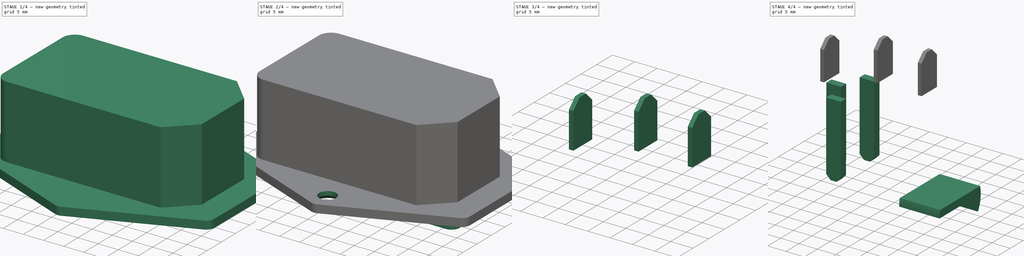
[diagram: build sequence overview — one tinted view per stage of 4, left to right]
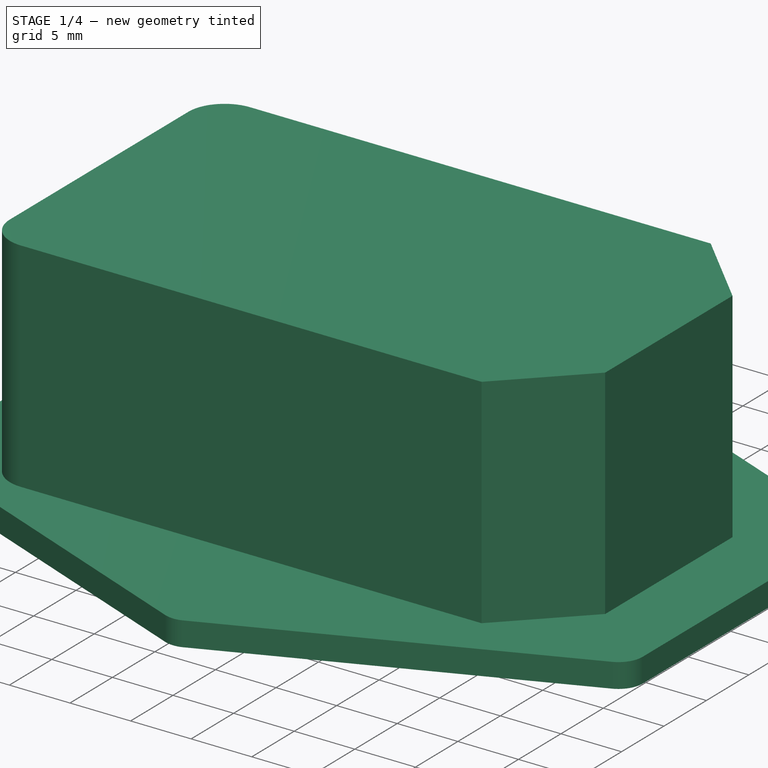
[diagram: stage 1 of 4 — iso view after this stage's code; geometry added in this stage tinted green]
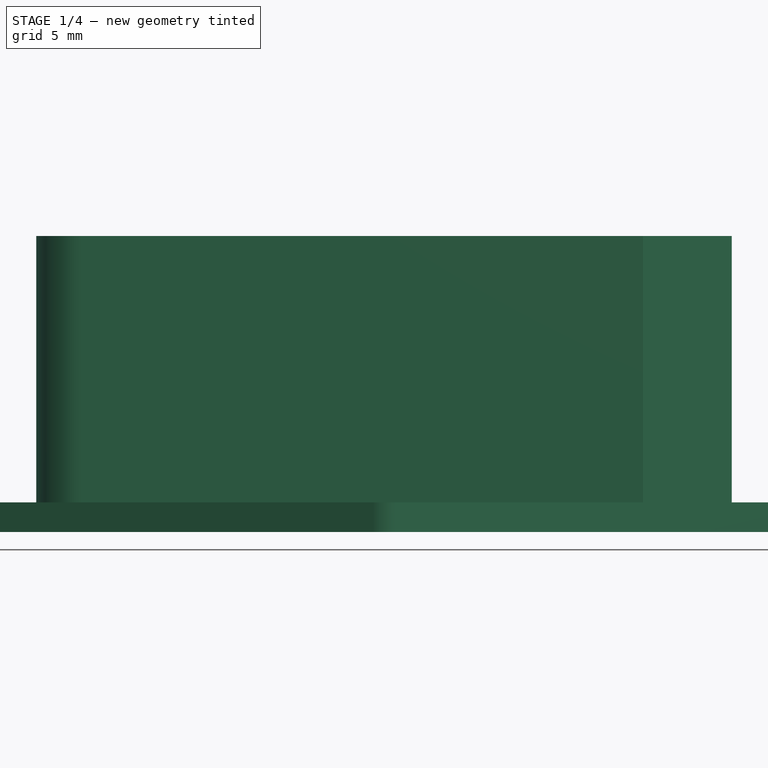
[diagram: stage 1 of 4 — front view after this stage's code; geometry added in this stage tinted green]
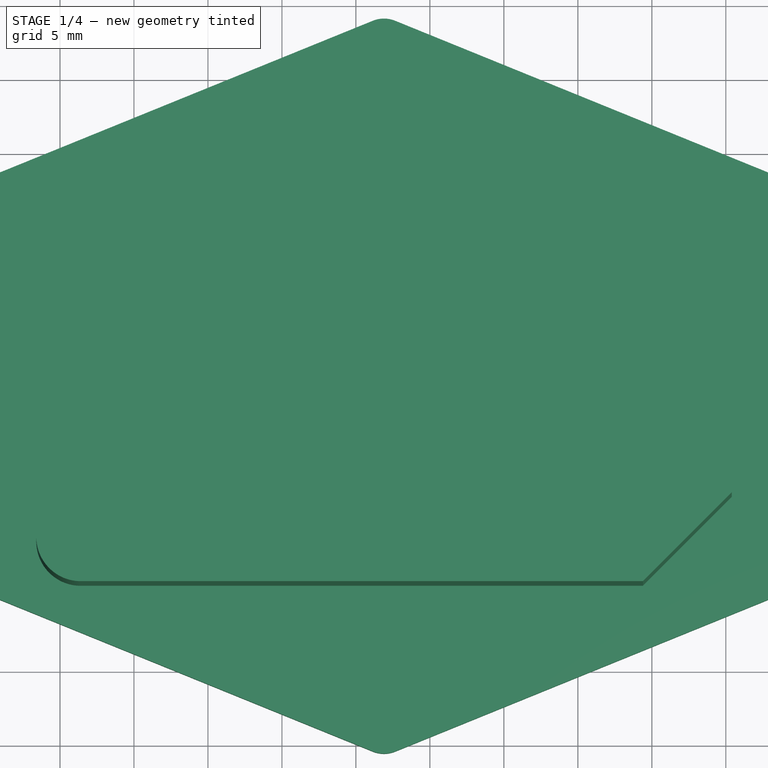
[diagram: stage 1 of 4 — top view after this stage's code; geometry added in this stage tinted green]
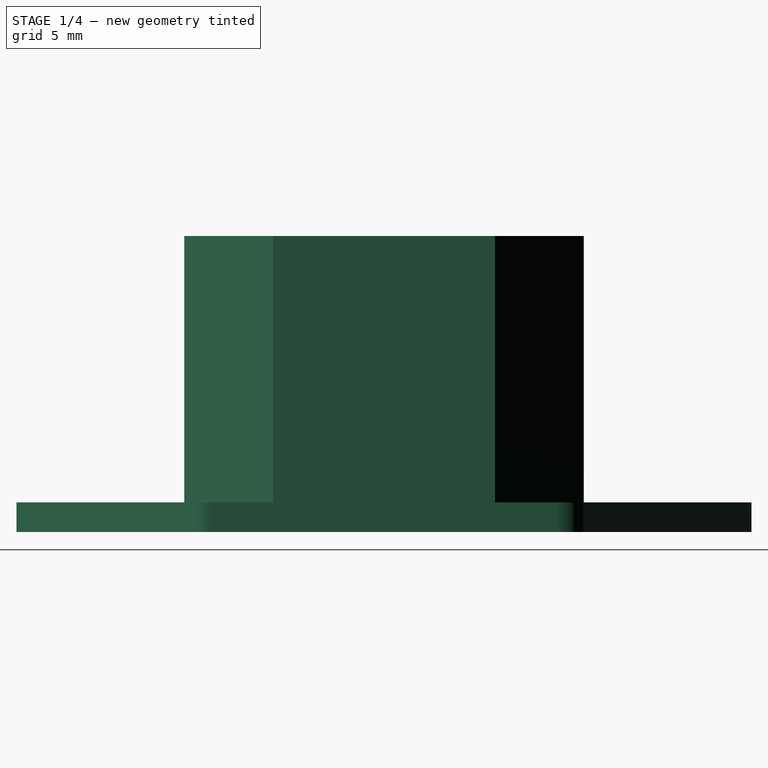
[diagram: stage 1 of 4 — right view after this stage's code; geometry added in this stage tinted green]
FCSTD DOCUMENT  (FreeCAD 0.16R5667 (Git))
Label: InterruptorConFusible
License: All rights reserved
LicenseURL: http://es.wikipedia.org/wiki/Todos_los_derechos_reservados
objects: Sketcher::SketchObject×8, PartDesign::Pad×4, PartDesign::Chamfer×3, PartDesign::Fillet×2, PartDesign::Pocket×2, Part::Extrusion×2, Part::FeaturePython×1
note: 28 computed .brp shape members not serialized (recipe doc carries the construction recipe); baked Part::Feature solids carry a one-line shape summary decoded from their .brp

FEATURE [Sketcher::SketchObject] Sketch
  sketch-geometry (7):
    g0: LineSegment StartX=-21.6015 StartY=12.7915 StartZ=0 EndX=19.3985 EndY=12.7915 EndZ=0
    g1: LineSegment StartX=19.3985 StartY=12.7915 StartZ=0 EndX=25.3985 EndY=6.79146 EndZ=0
    g2: LineSegment StartX=25.3985 StartY=6.79146 StartZ=0 EndX=25.3985 EndY=-8.20854 EndZ=0
    g3: LineSegment StartX=25.3985 StartY=-8.20854 StartZ=0 EndX=19.3985 EndY=-14.2085 EndZ=0
    g4: LineSegment StartX=19.3985 StartY=-14.2085 StartZ=0 EndX=-21.6015 EndY=-14.2085 EndZ=0
    g5: LineSegment StartX=-21.6015 StartY=-14.2085 StartZ=0 EndX=-21.6015 EndY=12.7915 EndZ=0
    g6: LineSegment [constr] StartX=19.3985 StartY=12.7915 StartZ=0 EndX=19.3985 EndY=-14.2085 EndZ=0
  constraints (19):
    c: Horizontal(g0)
    c: Coincident(g0,g1)
    c: Coincident(g1,g2)
    c: Vertical(g2)
    c: Coincident(g2,g3)
    c: Coincident(g3,g4)
    c: Horizontal(g4)
    c: Coincident(g4,g5)
    c: Coincident(g5,g0)
    c: Vertical(g5)
    c: Equal(g1,g3)
    c: Equal(g0,g4)
    c: Coincident(g6,g0)
    c: Coincident(g6,g3)
    c: Distance(g1,g5) = 47
    c: Perpendicular(g3,g1)
    c: Distance(g1,g6) = 6
    c: Distance(g5) = 27
    c: Distance(g2) = 15
FEATURE [PartDesign::Pad] Pad
  Length = 18
  Length2 = 100
  Sketch = -> Sketch
  Type = 0
FEATURE [Sketcher::SketchObject] Sketch001
  ExternalGeometry = -> [Pad]
  Placement = pos=(0,0,0) rot=(1,0,0;3.14159rad)
  Support = -> Pad [Face7]
  sketch-geometry (14):
    g0: LineSegment StartX=1.89849 StartY=25.7085 StartZ=0 EndX=-27.6015 EndY=13.7085 EndZ=0
    g1: LineSegment StartX=-27.6015 StartY=13.7085 StartZ=0 EndX=-27.6015 EndY=-12.2915 EndZ=0
    g2: LineSegment StartX=-27.6015 StartY=-12.2915 StartZ=0 EndX=1.89849 EndY=-24.2915 EndZ=0
    g3: LineSegment StartX=1.89849 StartY=-24.2915 StartZ=0 EndX=31.3985 EndY=-12.2915 EndZ=0
    g4: LineSegment StartX=31.3985 StartY=-12.2915 StartZ=0 EndX=31.3985 EndY=13.7085 EndZ=0
    g5: LineSegment StartX=31.3985 StartY=13.7085 StartZ=0 EndX=1.89849 EndY=25.7085 EndZ=0
    g6: LineSegment [constr] StartX=-21.6015 StartY=14.2085 StartZ=0 EndX=25.3985 EndY=14.2085 EndZ=0
    g7: LineSegment [constr] StartX=25.3985 StartY=14.2085 StartZ=0 EndX=25.3985 EndY=-12.7915 EndZ=0
    g8: LineSegment [constr] StartX=25.3985 StartY=-12.7915 StartZ=0 EndX=-21.6015 EndY=-12.7915 EndZ=0
    g9: LineSegment [constr] StartX=-21.6015 StartY=-12.7915 StartZ=0 EndX=-21.6015 EndY=14.2085 EndZ=0
    g10: LineSegment [constr] StartX=1.89849 StartY=25.7085 StartZ=0 EndX=-21.6015 EndY=14.2085 EndZ=0
    g11: LineSegment [constr] StartX=1.89849 StartY=25.7085 StartZ=0 EndX=25.3985 EndY=14.2085 EndZ=0
    g12: LineSegment [constr] StartX=25.3985 StartY=-12.7915 StartZ=0 EndX=1.89849 EndY=-24.2915 EndZ=0
    g13: LineSegment [constr] StartX=-21.6015 StartY=-12.7915 StartZ=0 EndX=1.89849 EndY=-24.2915 EndZ=0
  constraints (37):
    c: Coincident(g0,g1)
    c: Vertical(g1)
    c: Coincident(g1,g2)
    c: Coincident(g2,g3)
    c: Coincident(g3,g4)
    c: Vertical(g4)
    c: Coincident(g4,g5)
    c: Coincident(g5,g0)
    c: Coincident(g6,g7)
    c: Coincident(g7,g8)
    c: Coincident(g8,g9)
    c: Coincident(g9,g6)
    c: Horizontal(g6)
    c: Horizontal(g8)
    c: Vertical(g7)
    c: Vertical(g9)
    c: Coincident(g6,g-4)
    c: PointOnObject(g-3,g7)
    c: Coincident(g8,g-4)
    c: Coincident(g10,g0)
    c: Coincident(g10,g6)
    c: Coincident(g11,g0)
    c: Coincident(g11,g6)
    c: Coincident(g12,g7)
    c: Coincident(g12,g2)
    c: Coincident(g13,g8)
    c: Coincident(g13,g2)
    c: Equal(g12,g13)
    c: Equal(g13,g10)
    c: Equal(g10,g11)
    c: Equal(g2,g3)
    c: Equal(g3,g5)
    c: Equal(g5,g0)
    c: Equal(g1,g4)
    c: Distance(g0,g4) = 59
    c: Distance(g0,g2) = 50
    c: Distance(g4) = 26
FEATURE [PartDesign::Pad] Pad001
  Length = 2
  Length2 = 100
  Sketch = -> Sketch001
  Type = 0
FEATURE [PartDesign::Fillet] Fillet
  Base = -> Pad001 [Edge25,Edge28,Edge26,Edge30,Edge34,Edge32]
  Radius = 2
FEATURE [PartDesign::Fillet] Fillet001
  Base = -> Fillet [Edge45,Edge43]
  Radius = 3
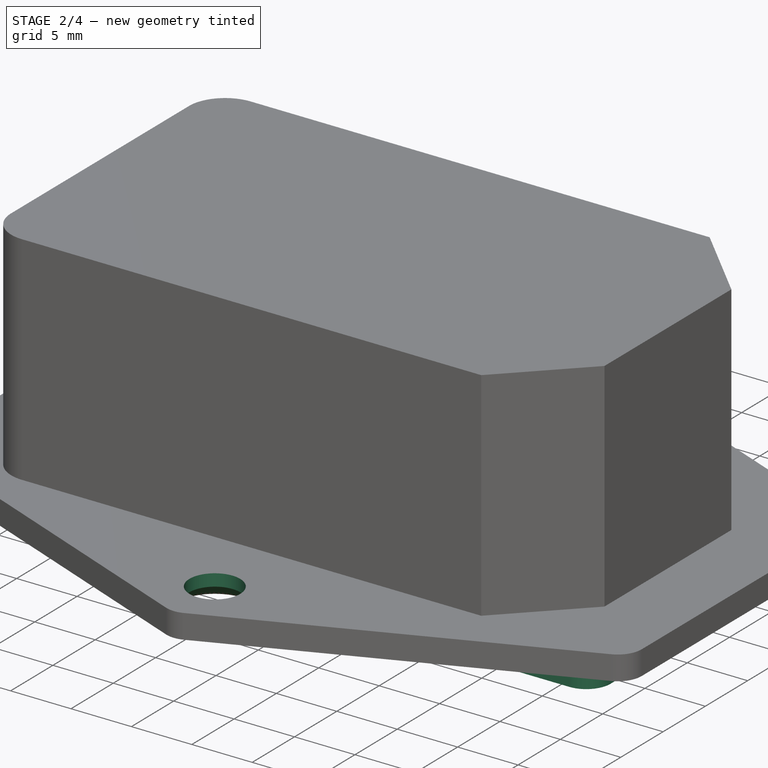
[diagram: stage 2 of 4 — iso view after this stage's code; geometry added in this stage tinted green]
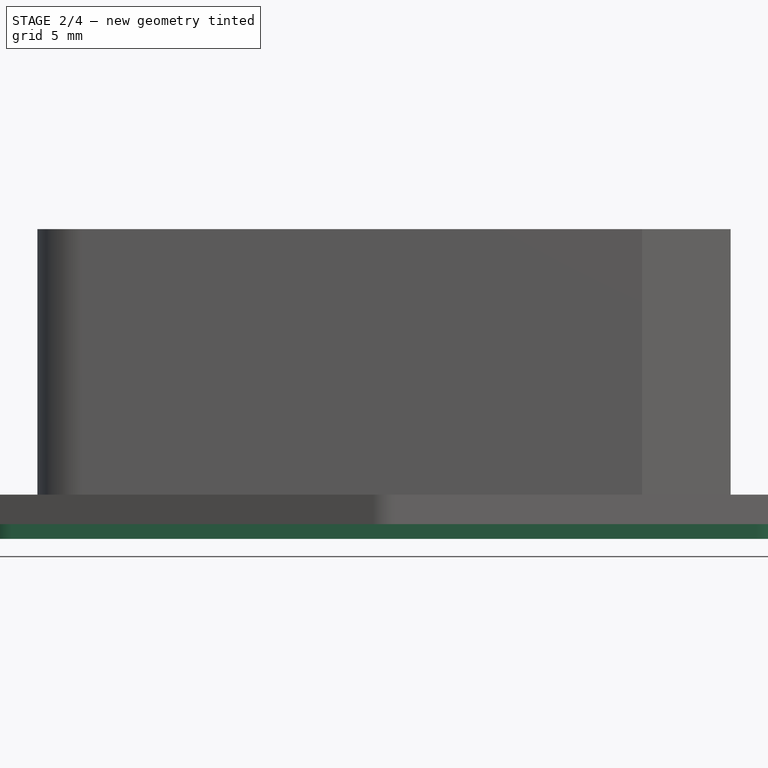
[diagram: stage 2 of 4 — front view after this stage's code; geometry added in this stage tinted green]
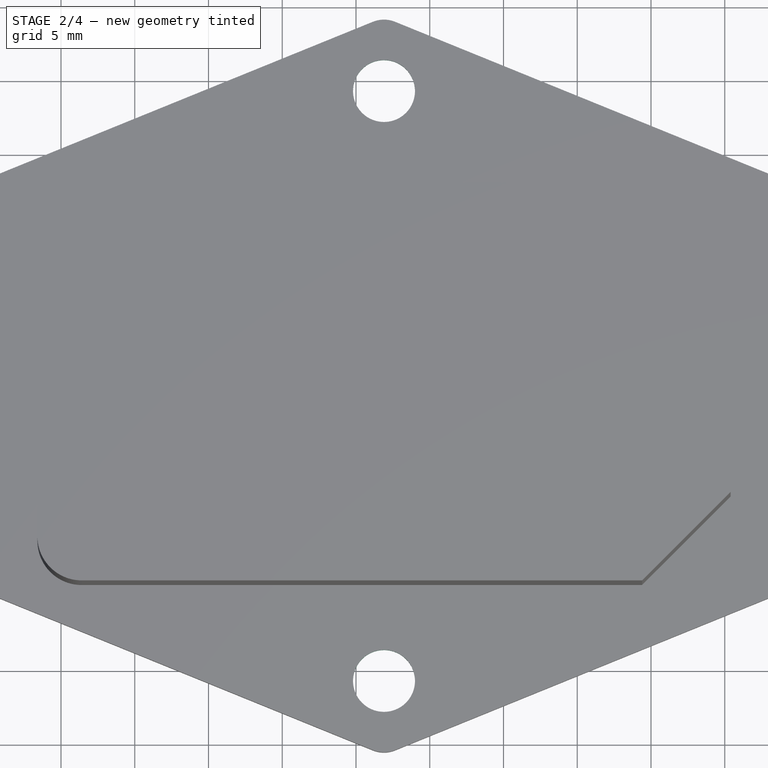
[diagram: stage 2 of 4 — top view after this stage's code; geometry added in this stage tinted green]
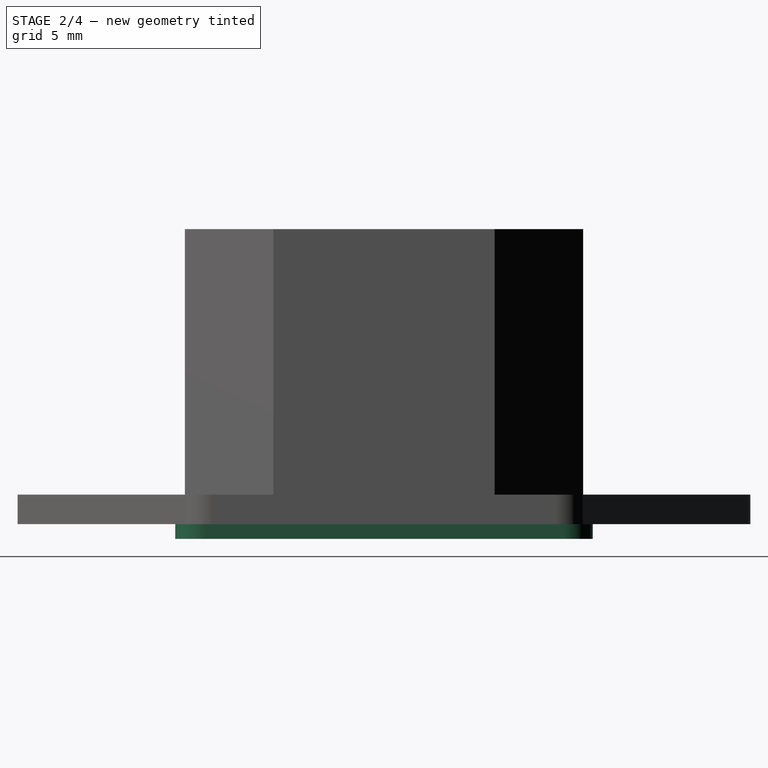
[diagram: stage 2 of 4 — right view after this stage's code; geometry added in this stage tinted green]
FEATURE [Sketcher::SketchObject] Sketch002
  ExternalGeometry = -> [Fillet001]
  Placement = pos=(0,0,-2) rot=(1,0,0;3.14159rad)
  Support = -> Fillet001 [Face23]
  sketch-geometry (5):
    g0: LineSegment [constr] StartX=1.89849 StartY=23.5494 StartZ=0 EndX=1.89849 EndY=20.7085 EndZ=0
    g1: LineSegment [constr] StartX=1.89849 StartY=20.7085 StartZ=0 EndX=1.89849 EndY=-19.2915 EndZ=0
    g2: LineSegment [constr] StartX=1.89849 StartY=-19.2915 StartZ=0 EndX=1.89849 EndY=-22.1323 EndZ=0
    g3: Circle CenterX=1.89849 CenterY=20.7085 CenterZ=0 NormalX=0 NormalY=0 NormalZ=1 Radius=2.1
    g4: Circle CenterX=1.89849 CenterY=-19.2915 CenterZ=0 NormalX=0 NormalY=0 NormalZ=1 Radius=2.1
  constraints (12):
    c: Coincident(g0,g-3)
    c: Vertical(g0)
    c: Coincident(g0,g1)
    c: Vertical(g1)
    c: Coincident(g1,g2)
    c: Coincident(g2,g-4)
    c: Equal(g0,g2)
    c: Coincident(g3,g0)
    c: Coincident(g4,g1)
    c: Radius(g3) = 2.1
    c: Equal(g3,g4)
    c: Distance(g1) = 40
FEATURE [PartDesign::Pocket] Pocket
  Length = 5
  Sketch = -> Sketch002
  Type = 0
FEATURE [PartDesign::Chamfer] Chamfer
  Base = -> Pocket [Edge47,Edge65]
  Size = 1
FEATURE [Sketcher::SketchObject] Sketch003
  ExternalGeometry = -> [Chamfer]
  Placement = pos=(0,0,-2) rot=(1,0,0;3.14159rad)
  Support = -> Chamfer [Face4]
  sketch-geometry (11):
    g0: LineSegment StartX=-23.3515 StartY=14.8585 StartZ=0 EndX=27.1485 EndY=14.8585 EndZ=0
    g1: LineSegment StartX=29.1485 StartY=12.8585 StartZ=0 EndX=29.1485 EndY=-11.4415 EndZ=0
    g2: LineSegment StartX=27.1485 StartY=-13.4415 StartZ=0 EndX=-23.3515 EndY=-13.4415 EndZ=0
    g3: LineSegment StartX=-25.3515 StartY=-11.4415 StartZ=0 EndX=-25.3515 EndY=12.8585 EndZ=0
    g4: LineSegment [constr] StartX=29.1485 StartY=12.8585 StartZ=0 EndX=31.3985 EndY=12.363 EndZ=0
    g5: LineSegment [constr] StartX=29.1485 StartY=-11.4415 StartZ=0 EndX=31.3985 EndY=-10.9459 EndZ=0
    g6: LineSegment [constr] StartX=-25.3515 StartY=12.8585 StartZ=0 EndX=-27.6015 EndY=12.363 EndZ=0
    g7: ArcOfCircle CenterX=27.1485 CenterY=12.8585 CenterZ=0 NormalX=0 NormalY=0 NormalZ=1 Radius=2 StartAngle=0 EndAngle=1.5708
    g8: ArcOfCircle CenterX=27.1485 CenterY=-11.4415 CenterZ=0 NormalX=0 NormalY=0 NormalZ=1 Radius=2 StartAngle=4.71239 EndAngle=6.28319
    g9: ArcOfCircle CenterX=-23.3515 CenterY=-11.4415 CenterZ=0 NormalX=0 NormalY=0 NormalZ=1 Radius=2 StartAngle=3.14159 EndAngle=4.71239
    g10: ArcOfCircle CenterX=-23.3515 CenterY=12.8585 CenterZ=0 NormalX=0 NormalY=0 NormalZ=1 Radius=2 StartAngle=1.5708 EndAngle=3.14159
  constraints (27):
    c: Horizontal(g0)
    c: Horizontal(g2)
    c: Vertical(g1)
    c: Vertical(g3)
    c: Coincident(g4,g-4)
    c: Coincident(g5,g-4)
    c: Coincident(g6,g-3)
    c: Equal(g5,g4)
    c: Tangent(g0,g7) = 1.5708
    c: Tangent(g1,g7) = 1.5708
    c: Tangent(g1,g8) = 1.5708
    c: Tangent(g2,g8) = 1.5708
    c: Tangent(g3,g9) = 1.5708
    c: Tangent(g2,g9) = 1.5708
    c: Tangent(g3,g10) = 1.5708
    c: Tangent(g0,g10) = 1.5708
    c: Radius(g10) = 2
    c: Equal(g10,g7)
    c: Equal(g10,g8)
    c: Equal(g10,g9)
    c: Distance(g0,g2) = 28.3
    c: Distance(g1,g3) = 54.5
    c: Coincident(g4,g1)
    c: Coincident(g1,g5)
    c: Coincident(g6,g3)
    c: Equal(g5,g4)
    c: Equal(g4,g6)
FEATURE [PartDesign::Pad] Pad002
  Length = 1
  Length2 = 100
  Sketch = -> Sketch003
  Type = 0
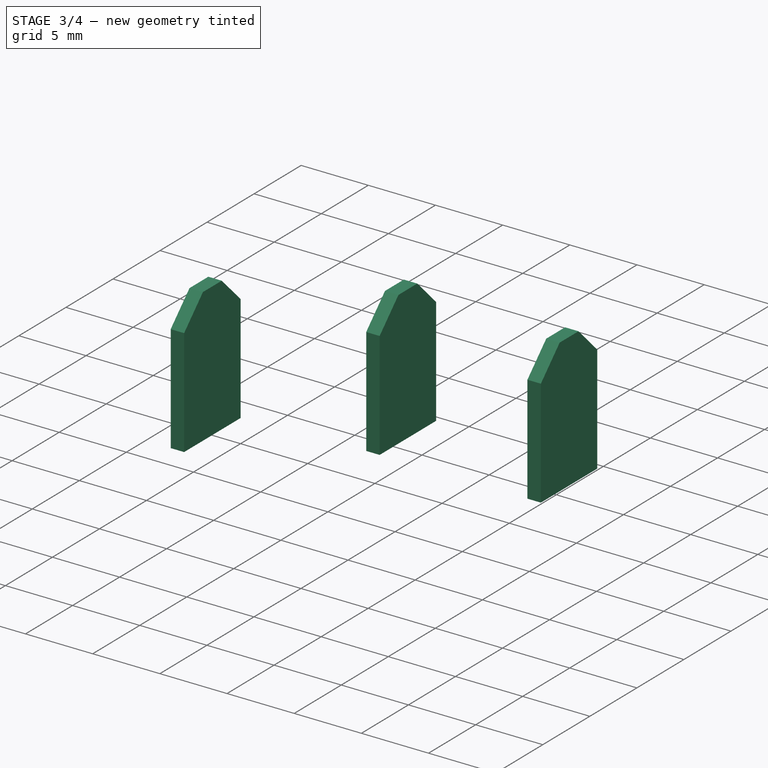
[diagram: stage 3 of 4 — iso view after this stage's code; geometry added in this stage tinted green]
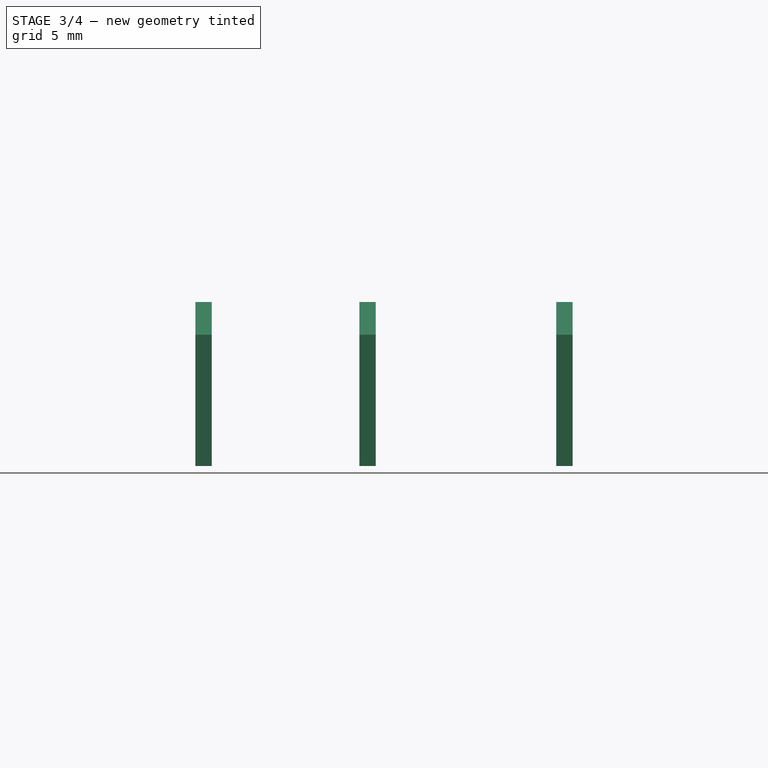
[diagram: stage 3 of 4 — front view after this stage's code; geometry added in this stage tinted green]
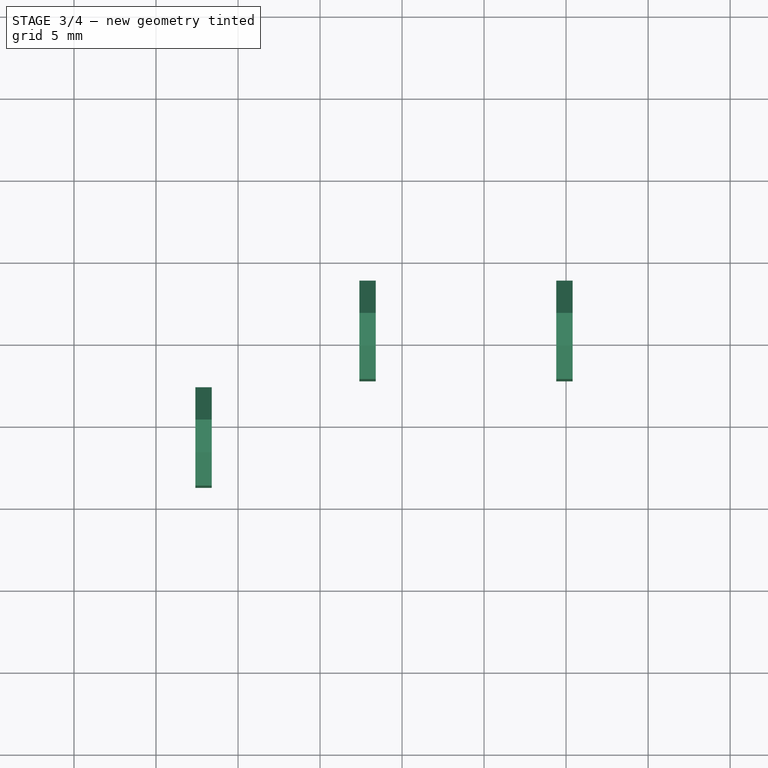
[diagram: stage 3 of 4 — top view after this stage's code; geometry added in this stage tinted green]
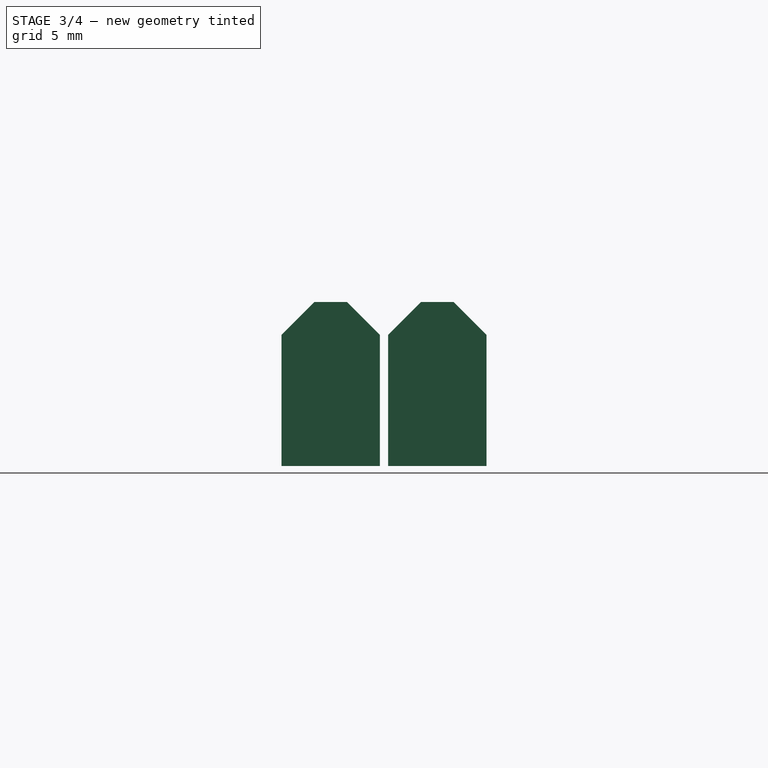
[diagram: stage 3 of 4 — right view after this stage's code; geometry added in this stage tinted green]
FEATURE [Sketcher::SketchObject] Sketch004
  ExternalGeometry = -> [Pad002]
  Placement = pos=(0,0,-3) rot=(1,0,0;3.14159rad)
  Support = -> Pad002 [Face1]
  sketch-geometry (8):
    g0: LineSegment StartX=-16.3515 StartY=12.7085 StartZ=0 EndX=-4.35151 EndY=12.7085 EndZ=0
    g1: LineSegment StartX=-4.35151 StartY=12.7085 StartZ=0 EndX=-4.35151 EndY=-11.2915 EndZ=0
    g2: LineSegment StartX=-4.35151 StartY=-11.2915 StartZ=0 EndX=-16.3515 EndY=-11.2915 EndZ=0
    g3: LineSegment StartX=-16.3515 StartY=-11.2915 StartZ=0 EndX=-21.3515 EndY=-7.29146 EndZ=0
    g4: LineSegment StartX=-21.3515 StartY=-7.29146 StartZ=0 EndX=-21.3515 EndY=8.70854 EndZ=0
    g5: LineSegment StartX=-21.3515 StartY=8.70854 StartZ=0 EndX=-16.3515 EndY=12.7085 EndZ=0
    g6: LineSegment [constr] StartX=-4.35151 StartY=12.7085 StartZ=0 EndX=-4.35151 EndY=14.8585 EndZ=0
    g7: LineSegment [constr] StartX=-4.35151 StartY=-11.2915 StartZ=0 EndX=-4.35151 EndY=-13.4415 EndZ=0
  constraints (24):
    c: Horizontal(g0)
    c: Coincident(g0,g1)
    c: Vertical(g1)
    c: Coincident(g1,g2)
    c: Horizontal(g2)
    c: Coincident(g2,g3)
    c: Coincident(g3,g4)
    c: Vertical(g4)
    c: Coincident(g4,g5)
    c: Coincident(g5,g0)
    c: Equal(g0,g2)
    c: Equal(g3,g5)
    c: Distance(g1) = 24
    c: Distance(g4,g1) = 17
    c: Distance(g4) = 16
    c: Distance(g4,g-3) = 4
    c: Coincident(g6,g0)
    c: PointOnObject(g6,g-5)
    c: Vertical(g6)
    c: Coincident(g7,g1)
    c: PointOnObject(g7,g-4)
    c: Vertical(g7)
    c: Equal(g7,g6)
    c: Distance(g0) = 12
FEATURE [PartDesign::Pocket] Pocket001
  Length = 20
  Sketch = -> Sketch004
  Type = 0
FEATURE [Sketcher::SketchObject] Sketch007
  ExternalGeometry = -> [Pocket001]
  Placement = pos=(0,0,18) rot=(0,0,1;0rad)
  Support = -> Pocket001 [Face43]
  sketch-geometry (15):
    g0: LineSegment StartX=-17.6015 StartY=2.29146 StartZ=0 EndX=-16.6015 EndY=2.29146 EndZ=0
    g1: LineSegment StartX=-16.6015 StartY=2.29146 StartZ=0 EndX=-16.6015 EndY=-3.70854 EndZ=0
    g2: LineSegment StartX=-16.6015 StartY=-3.70854 StartZ=0 EndX=-17.6015 EndY=-3.70854 EndZ=0
    g3: LineSegment StartX=-17.6015 StartY=-3.70854 StartZ=0 EndX=-17.6015 EndY=2.29146 EndZ=0
    g4: LineSegment StartX=4.39849 StartY=8.79146 StartZ=0 EndX=5.39849 EndY=8.79146 EndZ=0
    g5: LineSegment StartX=5.39849 StartY=8.79146 StartZ=0 EndX=5.39849 EndY=2.79146 EndZ=0
    g6: LineSegment StartX=5.39849 StartY=2.79146 StartZ=0 EndX=4.39849 EndY=2.79146 EndZ=0
    g7: LineSegment StartX=4.39849 StartY=2.79146 StartZ=0 EndX=4.39849 EndY=8.79146 EndZ=0
    g8: LineSegment StartX=-7.60151 StartY=8.79146 StartZ=0 EndX=-6.60151 EndY=8.79146 EndZ=0
    g9: LineSegment StartX=-6.60151 StartY=8.79146 StartZ=0 EndX=-6.60151 EndY=2.79146 EndZ=0
    g10: LineSegment StartX=-6.60151 StartY=2.79146 StartZ=0 EndX=-7.60151 EndY=2.79146 EndZ=0
    g11: LineSegment StartX=-7.60151 StartY=2.79146 StartZ=0 EndX=-7.60151 EndY=8.79146 EndZ=0
    g12: LineSegment [constr] StartX=-6.60151 StartY=8.79146 StartZ=0 EndX=4.39849 EndY=8.79146 EndZ=0
    g13: LineSegment [constr] StartX=-16.6015 StartY=2.29146 StartZ=0 EndX=25.3985 EndY=6.79146 EndZ=0
    g14: LineSegment [constr] StartX=-16.6015 StartY=-3.70854 StartZ=0 EndX=25.3985 EndY=-8.20854 EndZ=0
  constraints (42):
    c: Coincident(g0,g1)
    c: Coincident(g1,g2)
    c: Coincident(g2,g3)
    c: Coincident(g3,g0)
    c: Horizontal(g0)
    c: Horizontal(g2)
    c: Vertical(g1)
    c: Vertical(g3)
    c: Coincident(g4,g5)
    c: Coincident(g5,g6)
    c: Coincident(g6,g7)
    c: Coincident(g7,g4)
    c: Horizontal(g4)
    c: Horizontal(g6)
    c: Vertical(g5)
    c: Vertical(g7)
    c: Coincident(g8,g9)
    c: Coincident(g9,g10)
    c: Coincident(g10,g11)
    c: Coincident(g11,g8)
    c: Horizontal(g8)
    c: Horizontal(g10)
    c: Vertical(g9)
    c: Vertical(g11)
    c: Equal(g11,g7)
    c: Equal(g7,g3)
    c: Equal(g10,g6)
    c: Equal(g6,g2)
    c: Distance(g10) = 1
    c: Distance(g11) = 6
    c: Coincident(g12,g8)
    c: Coincident(g12,g4)
    c: Coincident(g13,g0)
    c: Coincident(g13,g-5)
    c: Coincident(g14,g1)
    c: Coincident(g14,g-5)
    c: Equal(g13,g14)
    c: Horizontal(g12)
    c: Distance(g12) = 11
    c: Distance(g4,g-3) = 4
    c: Distance(g8,g-6) = 14
    c: Distance(g0,g-6) = 4
FEATURE [Part::Extrusion] Extrude_Sketch007  label="Sketch007_Extrude"
  Base = -> Sketch007
  Dir = (0,0,10)
  Solid = true
FEATURE [PartDesign::Chamfer] Chamfer002
  Base = -> Extrude_Sketch007 [Edge16,Edge22,Edge34,Edge28,Edge4,Edge10]
  Size = 2
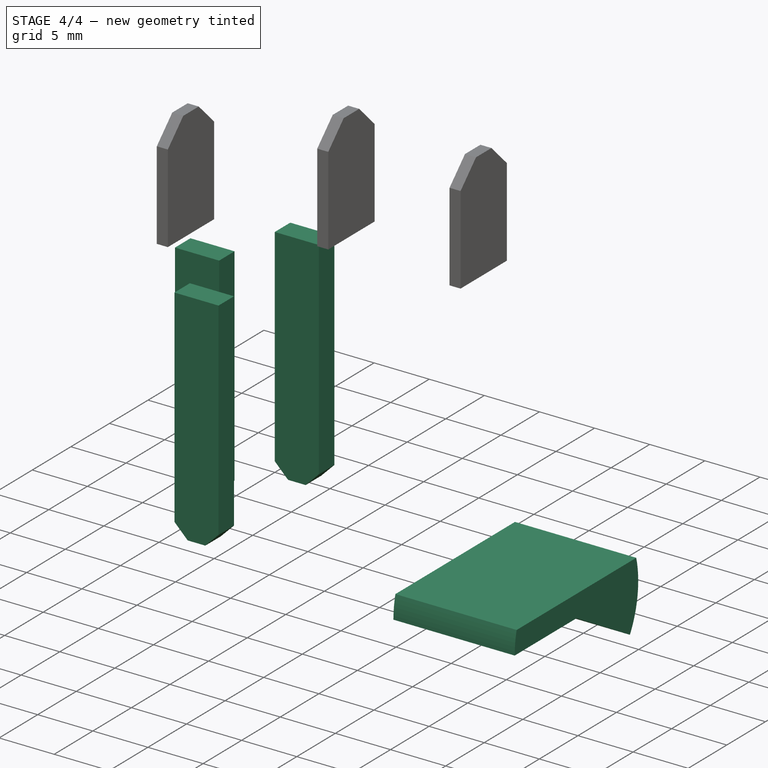
[diagram: stage 4 of 4 — iso view after this stage's code; geometry added in this stage tinted green]
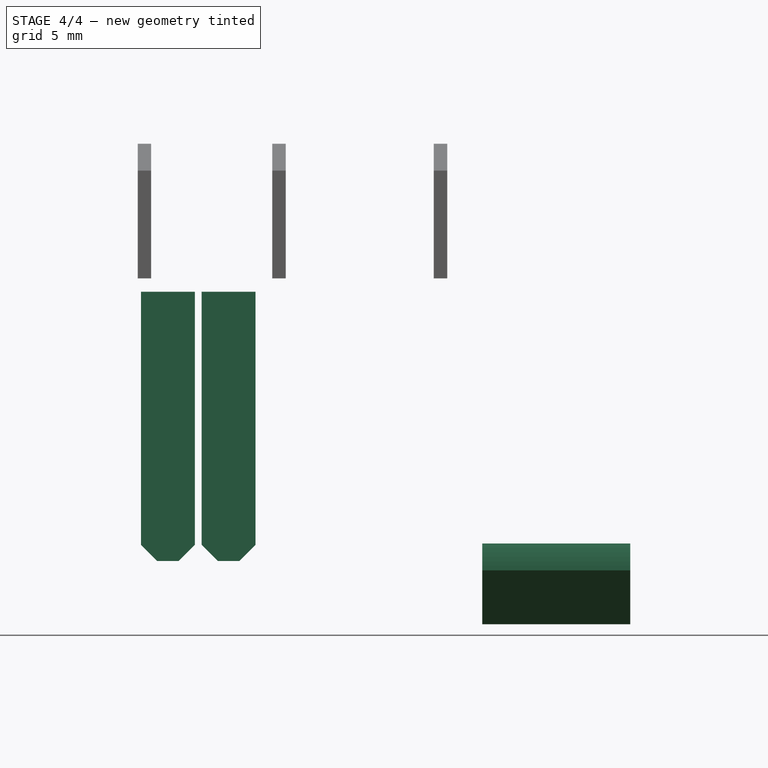
[diagram: stage 4 of 4 — front view after this stage's code; geometry added in this stage tinted green]
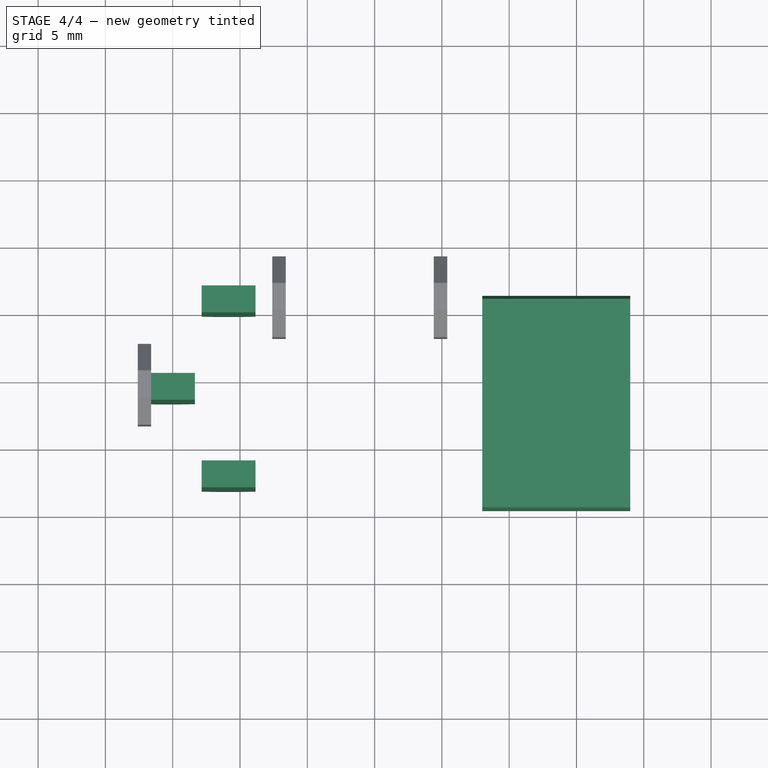
[diagram: stage 4 of 4 — top view after this stage's code; geometry added in this stage tinted green]
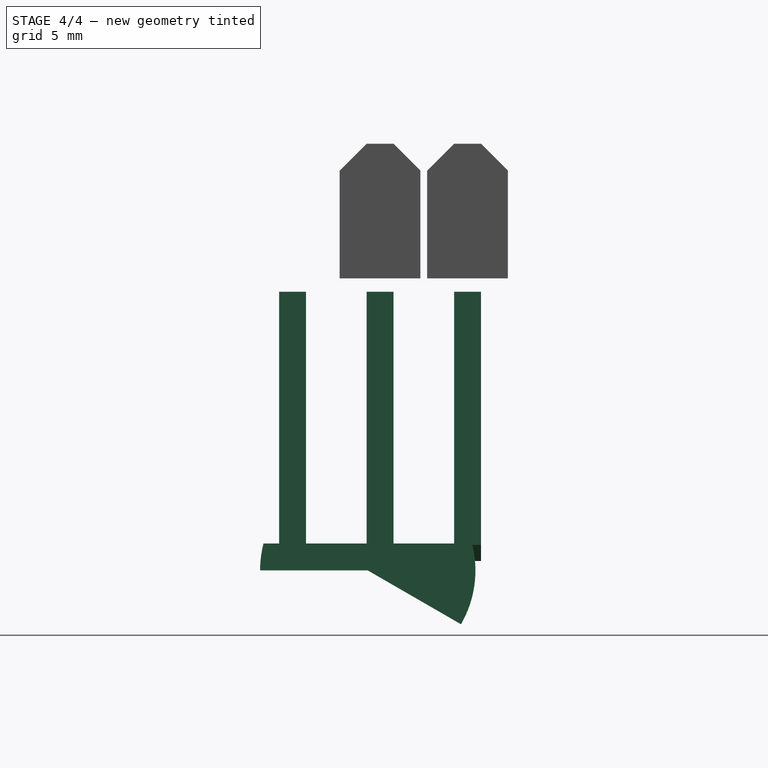
[diagram: stage 4 of 4 — right view after this stage's code; geometry added in this stage tinted green]
FEATURE [Sketcher::SketchObject] Sketch005
  Placement = pos=(0,0,0) rot=(0.57735,0.57735,0.57735;2.0944rad)
  sketch-geometry (5):
    g0: LineSegment StartX=-6.62187 StartY=-18.702 StartZ=0 EndX=1.37813 EndY=-18.702 EndZ=0
    g1: LineSegment StartX=1.37813 StartY=-18.702 StartZ=0 EndX=8.30634 EndY=-22.702 EndZ=0
    g2: ArcOfCircle CenterX=1.37813 CenterY=-18.702 CenterZ=0 NormalX=0 NormalY=0 NormalZ=1 Radius=8 StartAngle=2.88891 EndAngle=3.14159
    g3: ArcOfCircle CenterX=1.37813 CenterY=-18.702 CenterZ=0 NormalX=0 NormalY=0 NormalZ=1 Radius=8 StartAngle=5.75959 EndAngle=6.53587
    g4: LineSegment StartX=-6.36783 StartY=-16.702 StartZ=0 EndX=9.1241 EndY=-16.702 EndZ=0
  constraints (14):
    c: Horizontal(g0)
    c: Coincident(g0,g1)
    c: Coincident(g2,g0)
    c: Coincident(g2,g0)
    c: Coincident(g3,g0)
    c: Coincident(g3,g1)
    c: Coincident(g4,g2)
    c: Coincident(g4,g3)
    c: Equal(g3,g2)
    c: Equal(g0,g1)
    c: Angle(g0,g1) = 2.61799
    c: Distance(g1) = 8
    c: Parallel(g4,g0)
    c: Distance(g0,g4) = 2
FEATURE [PartDesign::Pad] Pad003  label="interruptor"
  Length = 11
  Length2 = 100
  Placement = pos=(0,0,0) rot=(0.57735,0.57735,0.57735;2.0944rad)
  Sketch = -> Sketch005
  Type = 0
FEATURE [Part::FeaturePython] Clone  label="Clone of interruptor"  # Draft clone (typed FeaturePython)
  Objects = -> [Pad003]
  Placement = pos=(8,-3,15) rot=(0.57735,0.57735,0.57735;2.0944rad)
  Scale = (1,1,1)
FEATURE [Sketcher::SketchObject] Sketch006
  ExternalGeometry = -> [Pocket001]
  Placement = pos=(0,0,17) rot=(1,0,0;3.14159rad)
  Support = -> Pocket001 [Face17]
  sketch-geometry (17):
    g0: LineSegment StartX=-12.8515 StartY=8.20854 StartZ=0 EndX=-8.85151 EndY=8.20854 EndZ=0
    g1: LineSegment StartX=-8.85151 StartY=8.20854 StartZ=0 EndX=-8.85151 EndY=6.20854 EndZ=0
    g2: LineSegment StartX=-8.85151 StartY=6.20854 StartZ=0 EndX=-12.8515 EndY=6.20854 EndZ=0
    g3: LineSegment StartX=-12.8515 StartY=6.20854 StartZ=0 EndX=-12.8515 EndY=8.20854 EndZ=0
    g4: LineSegment StartX=-12.8515 StartY=-4.79146 StartZ=0 EndX=-8.85151 EndY=-4.79146 EndZ=0
    g5: LineSegment StartX=-8.85151 StartY=-4.79146 StartZ=0 EndX=-8.85151 EndY=-6.79146 EndZ=0
    g6: LineSegment StartX=-8.85151 StartY=-6.79146 StartZ=0 EndX=-12.8515 EndY=-6.79146 EndZ=0
    g7: LineSegment StartX=-12.8515 StartY=-6.79146 StartZ=0 EndX=-12.8515 EndY=-4.79146 EndZ=0
    g8: LineSegment StartX=-17.3515 StartY=1.70854 StartZ=0 EndX=-13.3515 EndY=1.70854 EndZ=0
    g9: LineSegment StartX=-13.3515 StartY=1.70854 StartZ=0 EndX=-13.3515 EndY=-0.291464 EndZ=0
    g10: LineSegment StartX=-13.3515 StartY=-0.291464 StartZ=0 EndX=-17.3515 EndY=-0.291464 EndZ=0
    g11: LineSegment StartX=-17.3515 StartY=-0.291464 StartZ=0 EndX=-17.3515 EndY=1.70854 EndZ=0
    g12: LineSegment [constr] StartX=-4.35151 StartY=12.7085 StartZ=0 EndX=-8.85151 EndY=8.20854 EndZ=0
    g13: LineSegment [constr] StartX=-12.8515 StartY=6.20854 StartZ=0 EndX=-13.3515 EndY=1.70854 EndZ=0
    g14: LineSegment [constr] StartX=-13.3515 StartY=-0.291464 StartZ=0 EndX=-12.8515 EndY=-4.79146 EndZ=0
    g15: LineSegment [constr] StartX=-8.85151 StartY=-6.79146 StartZ=0 EndX=-4.35151 EndY=-11.2915 EndZ=0
    g16: LineSegment [constr] StartX=-8.85151 StartY=6.20854 StartZ=0 EndX=-8.85151 EndY=-4.79146 EndZ=0
  constraints (51):
    c: Coincident(g0,g1)
    c: Coincident(g1,g2)
    c: Coincident(g2,g3)
    c: Coincident(g3,g0)
    c: Horizontal(g0)
    c: Horizontal(g2)
    c: Vertical(g1)
    c: Vertical(g3)
    c: Coincident(g4,g5)
    c: Coincident(g5,g6)
    c: Coincident(g6,g7)
    c: Coincident(g7,g4)
    c: Horizontal(g4)
    c: Horizontal(g6)
    c: Vertical(g5)
    c: Vertical(g7)
    c: Coincident(g8,g9)
    c: Coincident(g9,g10)
    c: Coincident(g10,g11)
    c: Coincident(g11,g8)
    c: Horizontal(g8)
    c: Horizontal(g10)
    c: Vertical(g9)
    c: Vertical(g11)
    c: Coincident(g12,g-3)
    c: Coincident(g12,g0)
    c: Coincident(g13,g2)
    c: Coincident(g13,g8)
    c: Coincident(g14,g9)
    c: Coincident(g14,g4)
    c: Coincident(g15,g5)
    c: Coincident(g15,g-4)
    c: Equal(g12,g15)
    c: Equal(g13,g14)
    c: Coincident(g16,g1)
    c: Coincident(g16,g4)
    c: Vertical(g16)
    c: Equal(g0,g2)
    c: Equal(g2,g4)
    c: Equal(g4,g6)
    c: Equal(g6,g10)
    c: Equal(g10,g8)
    c: Equal(g11,g3)
    c: Equal(g3,g1)
    c: Equal(g1,g7)
    c: Equal(g7,g5)
    c: Distance(g8) = 4
    c: Distance(g11) = 2
    c: Distance(g8,g-5) = 4
    c: Distance(g0,g-3) = 4.5
    c: Distance(g1,g-6) = 4.5
FEATURE [Part::Extrusion] Extrude_Sketch006001  label="Sketch006_Extrude001"
  Base = -> Sketch006
  Dir = (0,0,-20)
  Solid = true
FEATURE [PartDesign::Chamfer] Chamfer001
  Base = -> Extrude_Sketch006001 [Edge7,Edge12,Edge24,Edge19,Edge36,Edge31]
  Size = 1.2
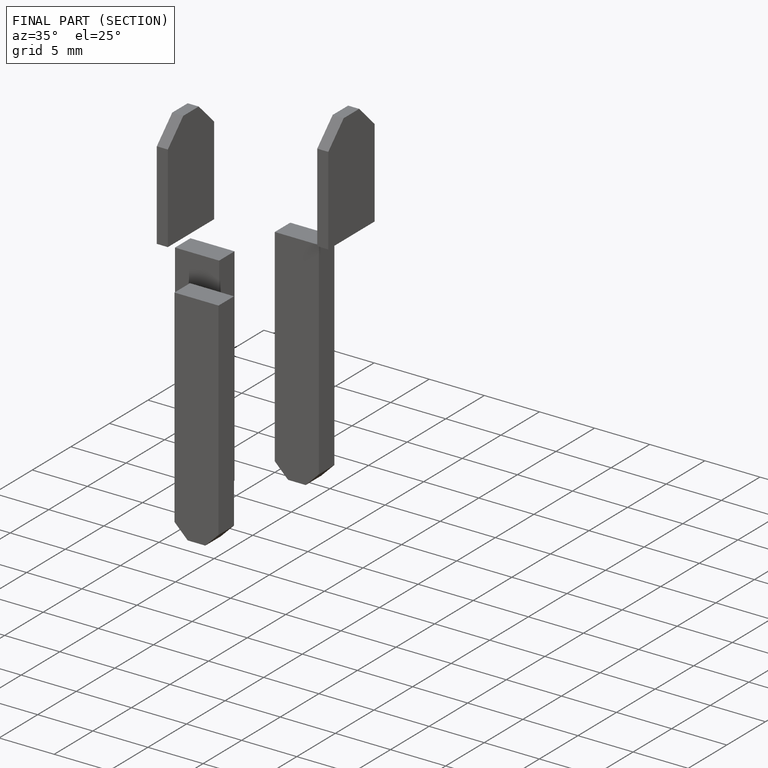
[diagram: finished part — half-section view (interior)]
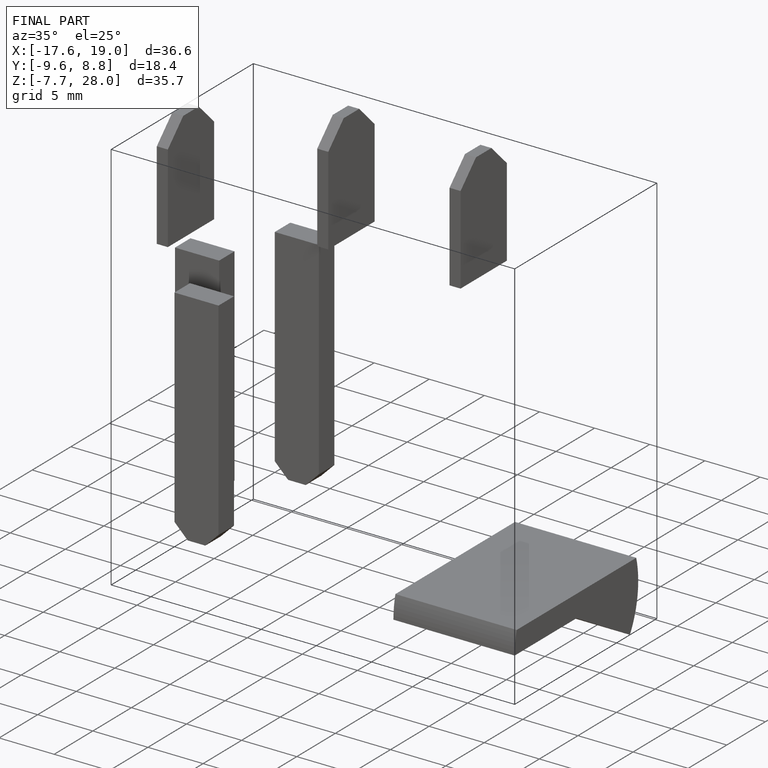
[diagram: finished part — iso view with bounding-box wireframe]
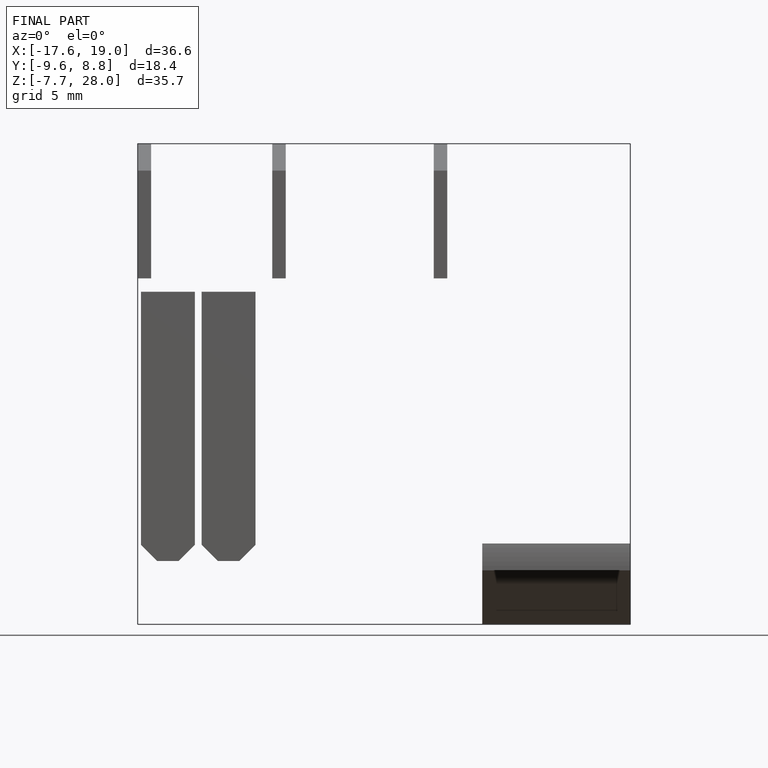
[diagram: finished part — front view with bounding-box wireframe]
